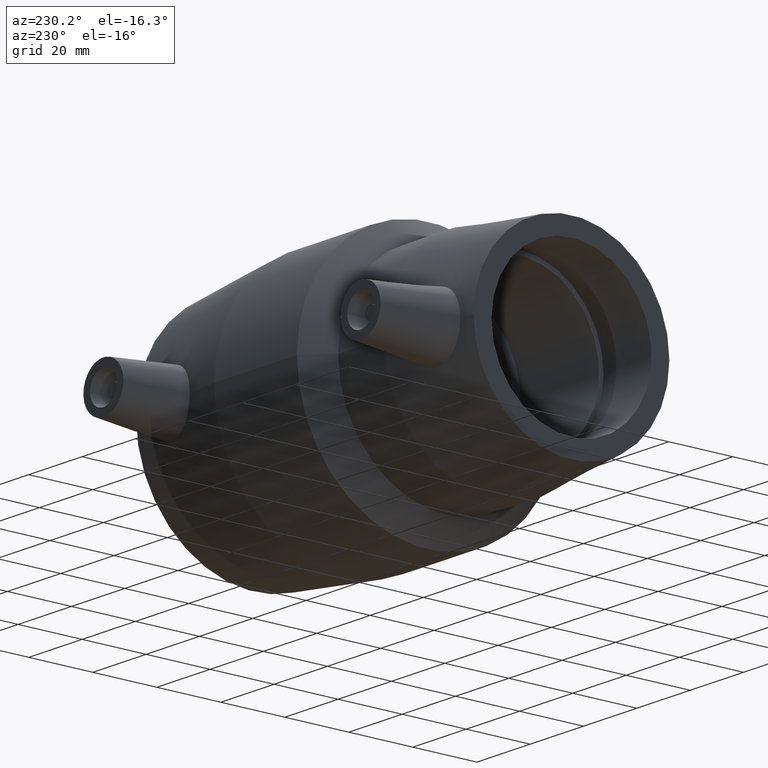
[diagram: clean part render]
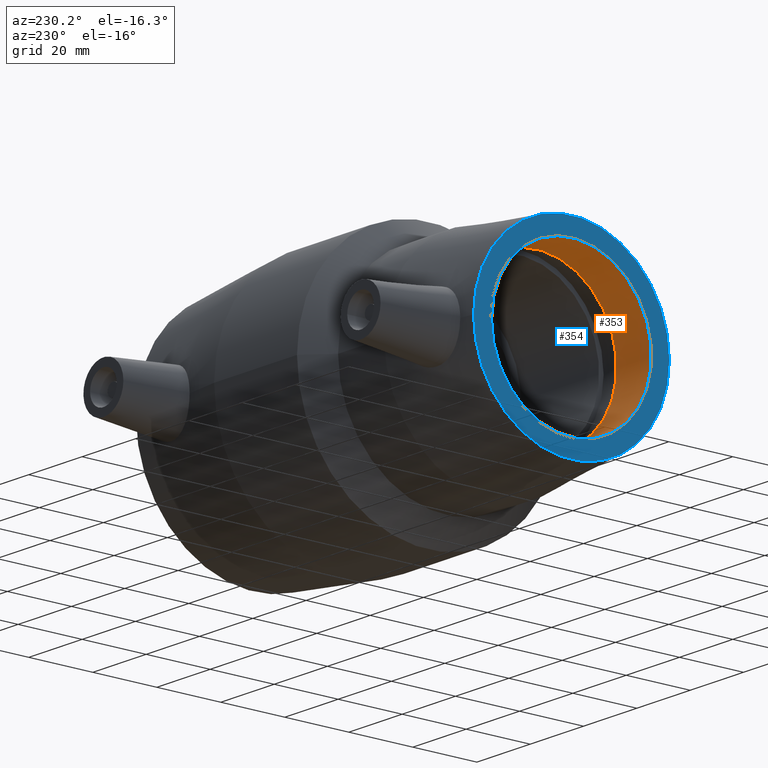
[diagram: same view with the hole feature highlighted: cylindrical wall and planar end face, labeled with their STEP entity ids]
A machine part, auxiliary view. The highlighted faces form one hole feature of diameter 50 mm: the cylindrical wall (entity #353, orange) and its adjacent planar end face (entity #354, blue) — they share a circular edge in the B-rep.
Wall:
#52=FACE_BOUND('',#154,.T.);
#66=CYLINDRICAL_SURFACE('',#413,25.);
#95=FACE_OUTER_BOUND('',#153,.T.);
#153=EDGE_LOOP('',(#306));
#154=EDGE_LOOP('',(#307));
#186=CIRCLE('',#412,25.);
#187=CIRCLE('',#414,25.);
#217=VERTEX_POINT('',#691);
#218=VERTEX_POINT('',#694);
#248=EDGE_CURVE('',#217,#217,#186,.T.);
#249=EDGE_CURVE('',#218,#218,#187,.T.);
#306=ORIENTED_EDGE('',*,*,#249,.F.);
#307=ORIENTED_EDGE('',*,*,#248,.T.);
#353=ADVANCED_FACE('',(#95,#52),#66,.F.);
#412=AXIS2_PLACEMENT_3D('',#692,#528,#529);
#413=AXIS2_PLACEMENT_3D('',#693,#530,#531);
#414=AXIS2_PLACEMENT_3D('',#695,#532,#533);
#528=DIRECTION('center_axis',(1.,1.83697019872103E-16,0.));
#529=DIRECTION('ref_axis',(0.,0.,-1.));
#530=DIRECTION('center_axis',(1.,1.83697019872103E-16,0.));
#531=DIRECTION('ref_axis',(-2.07668631751007E-16,1.,0.));
#532=DIRECTION('center_axis',(1.,1.83697019872103E-16,0.));
#533=DIRECTION('ref_axis',(0.,0.,-1.));
#691=CARTESIAN_POINT('',(-46.4333333333333,25.,0.));
#692=CARTESIAN_POINT('Origin',(-46.4333333333333,2.40030772632881E-15,0.));
#693=CARTESIAN_POINT('Origin',(-52.9666666666667,1.20015386316441E-15,0.));
#694=CARTESIAN_POINT('',(-59.5,25.,0.));
#695=CARTESIAN_POINT('Origin',(-59.5,4.93038065763132E-31,0.));
End face:
#53=FACE_BOUND('',#156,.T.);
#96=FACE_OUTER_BOUND('',#155,.T.);
#155=EDGE_LOOP('',(#308));
#156=EDGE_LOOP('',(#309));
#187=CIRCLE('',#414,25.);
#188=CIRCLE('',#416,30.6);
#218=VERTEX_POINT('',#694);
#219=VERTEX_POINT('',#697);
#249=EDGE_CURVE('',#218,#218,#187,.T.);
#250=EDGE_CURVE('',#219,#219,#188,.T.);
#308=ORIENTED_EDGE('',*,*,#250,.F.);
#309=ORIENTED_EDGE('',*,*,#249,.T.);
#324=PLANE('',#415);
#354=ADVANCED_FACE('',(#96,#53),#324,.T.);
#414=AXIS2_PLACEMENT_3D('',#695,#532,#533);
#415=AXIS2_PLACEMENT_3D('',#696,#534,#535);
#416=AXIS2_PLACEMENT_3D('',#698,#536,#537);
#532=DIRECTION('center_axis',(1.,1.83697019872103E-16,0.));
#533=DIRECTION('ref_axis',(0.,0.,-1.));
#534=DIRECTION('center_axis',(-1.,-1.83697019872103E-16,0.));
#535=DIRECTION('ref_axis',(0.,0.,1.));
#536=DIRECTION('center_axis',(1.,1.83697019872103E-16,0.));
#537=DIRECTION('ref_axis',(0.,0.,-1.));
#694=CARTESIAN_POINT('',(-59.5,25.,0.));
#695=CARTESIAN_POINT('Origin',(-59.5,4.93038065763132E-31,0.));
#696=CARTESIAN_POINT('Origin',(-59.5,30.6,0.));
#697=CARTESIAN_POINT('',(-59.5,30.6,0.));
#698=CARTESIAN_POINT('Origin',(-59.5,9.86076131526265E-31,0.));